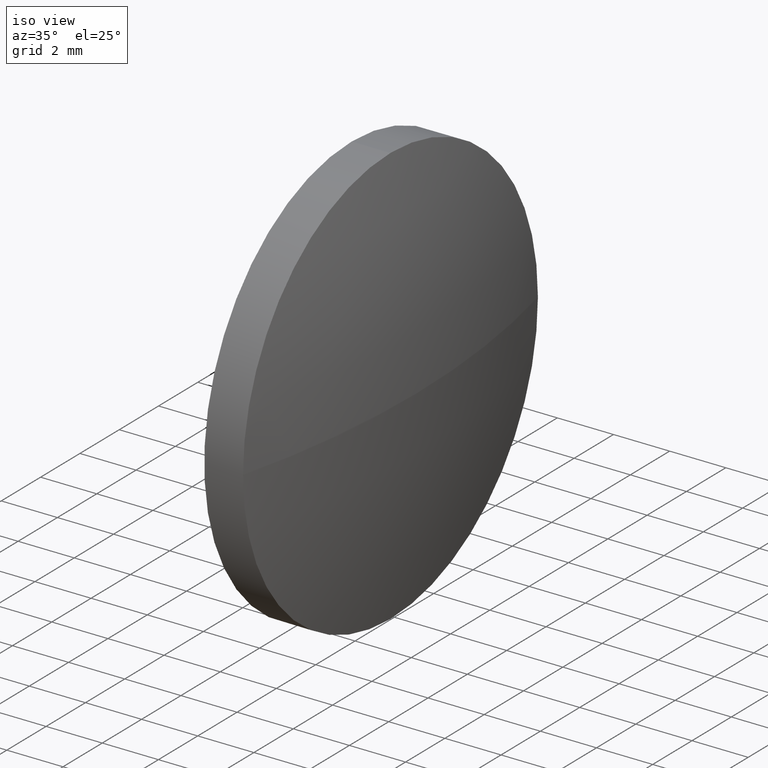
[diagram: clean part render]
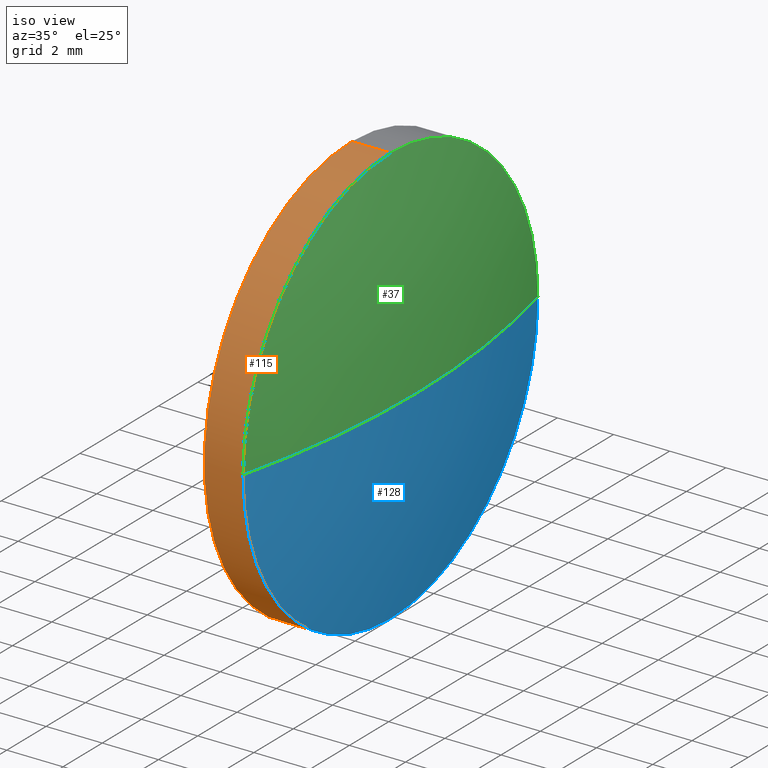
[diagram: same view with three faces highlighted in distinct colors, each labeled with its STEP entity id]
A machine part, iso view with three faces highlighted in distinct colors.
Their STEP definitions:

[orange] entity #115 — the highlighted cylindrical surface (partial cylindrical patch) has radius 7.5 mm, axis along (-1, -0, -0).
#1 = EDGE_LOOP ( 'NONE', ( #184, #165, #14, #60, #132 ) ) ;
#2 = CARTESIAN_POINT ( 'NONE',  ( 576.6614697419953500, 147.2765599219413800, 0.0000000000000000000 ) ) ;
#3 = CARTESIAN_POINT ( 'NONE',  ( 580.3681567995189400, 147.2765599219413800, 0.0000000000000000000 ) ) ;
#6 = LINE ( 'NONE', #182, #33 ) ;
#12 = AXIS2_PLACEMENT_3D ( 'NONE', #2, #20, #53 ) ;
#14 = ORIENTED_EDGE ( 'NONE', *, *, #97, .T. ) ;
#20 = DIRECTION ( 'NONE',  ( -1.000000000000000000, -0.0000000000000000000, -0.0000000000000000000 ) ) ;
#21 = CARTESIAN_POINT ( 'NONE',  ( 578.9881567995189500, 147.2765599219413800, -7.500000000000007100 ) ) ;
#22 = DIRECTION ( 'NONE',  ( 0.0000000000000000000, 0.0000000000000000000, 1.000000000000000000 ) ) ;
#23 = VERTEX_POINT ( 'NONE', #64 ) ;
#28 = CIRCLE ( 'NONE', #185, 7.500000000000007100 ) ;
#33 = VECTOR ( 'NONE', #69, 1000.000000000000000 ) ;
#36 = CARTESIAN_POINT ( 'NONE',  ( 580.3681567995189400, 147.2765599219413800, 7.500000000000007100 ) ) ;
#40 = CARTESIAN_POINT ( 'NONE',  ( 580.3681567995189400, 147.2765599219413800, -7.500000000000007100 ) ) ;
#43 = EDGE_CURVE ( 'NONE', #120, #144, #78, .T. ) ;
#44 = LINE ( 'NONE', #95, #126 ) ;
#50 = DIRECTION ( 'NONE',  ( 0.0000000000000000000, 0.0000000000000000000, 1.000000000000000000 ) ) ;
#53 = DIRECTION ( 'NONE',  ( 0.0000000000000000000, 0.0000000000000000000, 1.000000000000000000 ) ) ;
#54 = CARTESIAN_POINT ( 'NONE',  ( 578.9881567995189500, 147.2765599219413800, 0.0000000000000000000 ) ) ;
#60 = ORIENTED_EDGE ( 'NONE', *, *, #172, .T. ) ;
#64 = CARTESIAN_POINT ( 'NONE',  ( 578.9881567995189500, 147.2765599219413800, 7.500000000000007100 ) ) ;
#69 = DIRECTION ( 'NONE',  ( -1.000000000000000000, -0.0000000000000000000, -0.0000000000000000000 ) ) ;
#78 = CIRCLE ( 'NONE', #152, 7.500000000000007100 ) ;
#91 = DIRECTION ( 'NONE',  ( -1.000000000000000000, -0.0000000000000000000, -0.0000000000000000000 ) ) ;
#95 = CARTESIAN_POINT ( 'NONE',  ( 576.6614697419953500, 147.2765599219413800, 7.500000000000007100 ) ) ;
#97 = EDGE_CURVE ( 'NONE', #144, #183, #28, .T. ) ;
#110 = CARTESIAN_POINT ( 'NONE',  ( 580.3681567995189400, 139.7765599219414700, 0.0000000000000000000 ) ) ;
#111 = CYLINDRICAL_SURFACE ( 'NONE', #12, 7.500000000000007100 ) ;
#114 = DIRECTION ( 'NONE',  ( -1.000000000000000000, -0.0000000000000000000, -0.0000000000000000000 ) ) ;
#115 = ADVANCED_FACE ( 'NONE', ( #155 ), #111, .T. ) ;
#117 = VERTEX_POINT ( 'NONE', #21 ) ;
#120 = VERTEX_POINT ( 'NONE', #40 ) ;
#126 = VECTOR ( 'NONE', #129, 1000.000000000000000 ) ;
#129 = DIRECTION ( 'NONE',  ( -1.000000000000000000, -0.0000000000000000000, -0.0000000000000000000 ) ) ;
#132 = ORIENTED_EDGE ( 'NONE', *, *, #178, .F. ) ;
#136 = DIRECTION ( 'NONE',  ( 0.0000000000000000000, 0.0000000000000000000, 1.000000000000000000 ) ) ;
#142 = AXIS2_PLACEMENT_3D ( 'NONE', #54, #114, #136 ) ;
#144 = VERTEX_POINT ( 'NONE', #110 ) ;
#149 = CIRCLE ( 'NONE', #142, 7.500000000000007100 ) ;
#151 = EDGE_CURVE ( 'NONE', #120, #117, #6, .T. ) ;
#152 = AXIS2_PLACEMENT_3D ( 'NONE', #173, #91, #50 ) ;
#155 = FACE_OUTER_BOUND ( 'NONE', #1, .T. ) ;
#165 = ORIENTED_EDGE ( 'NONE', *, *, #43, .T. ) ;
#172 = EDGE_CURVE ( 'NONE', #183, #23, #44, .T. ) ;
#173 = CARTESIAN_POINT ( 'NONE',  ( 580.3681567995189400, 147.2765599219413800, 0.0000000000000000000 ) ) ;
#178 = EDGE_CURVE ( 'NONE', #117, #23, #149, .T. ) ;
#180 = DIRECTION ( 'NONE',  ( -1.000000000000000000, -0.0000000000000000000, -0.0000000000000000000 ) ) ;
#182 = CARTESIAN_POINT ( 'NONE',  ( 576.6614697419953500, 147.2765599219413800, -7.500000000000007100 ) ) ;
#183 = VERTEX_POINT ( 'NONE', #36 ) ;
#184 = ORIENTED_EDGE ( 'NONE', *, *, #151, .F. ) ;
#185 = AXIS2_PLACEMENT_3D ( 'NONE', #3, #180, #22 ) ;

[blue] entity #128 — the highlighted spherical surface has radius 31.0307 mm.
#8 = CIRCLE ( 'NONE', #68, 31.03065217391332100 ) ;
#9 = AXIS2_PLACEMENT_3D ( 'NONE', #72, #146, #147 ) ;
#15 = EDGE_CURVE ( 'NONE', #160, #120, #89, .T. ) ;
#19 = EDGE_LOOP ( 'NONE', ( #32, #93, #127, #66 ) ) ;
#24 = CIRCLE ( 'NONE', #9, 31.03065217391327800 ) ;
#32 = ORIENTED_EDGE ( 'NONE', *, *, #112, .F. ) ;
#34 = CARTESIAN_POINT ( 'NONE',  ( 581.2881567995189000, 147.2765599219415500, 0.0000000000000000000 ) ) ;
#39 = CARTESIAN_POINT ( 'NONE',  ( 580.3681567995189400, 154.7765599219414700, 9.184850993605047400E-016 ) ) ;
#40 = CARTESIAN_POINT ( 'NONE',  ( 580.3681567995189400, 147.2765599219413800, -7.500000000000007100 ) ) ;
#41 = DIRECTION ( 'NONE',  ( 0.0000000000000000000, 0.0000000000000000000, 1.000000000000000000 ) ) ;
#43 = EDGE_CURVE ( 'NONE', #120, #144, #78, .T. ) ;
#45 = AXIS2_PLACEMENT_3D ( 'NONE', #48, #67, #46 ) ;
#46 = DIRECTION ( 'NONE',  ( 0.0000000000000000000, 0.0000000000000000000, 1.000000000000000000 ) ) ;
#48 = CARTESIAN_POINT ( 'NONE',  ( 580.3681567995189400, 147.2765599219413800, 0.0000000000000000000 ) ) ;
#50 = DIRECTION ( 'NONE',  ( 0.0000000000000000000, 0.0000000000000000000, 1.000000000000000000 ) ) ;
#66 = ORIENTED_EDGE ( 'NONE', *, *, #15, .F. ) ;
#67 = DIRECTION ( 'NONE',  ( -1.000000000000000000, -0.0000000000000000000, -0.0000000000000000000 ) ) ;
#68 = AXIS2_PLACEMENT_3D ( 'NONE', #131, #148, #130 ) ;
#71 = CARTESIAN_POINT ( 'NONE',  ( 550.2575046256056300, 147.2765599219415500, 0.0000000000000000000 ) ) ;
#72 = CARTESIAN_POINT ( 'NONE',  ( 550.2575046256056300, 147.2765599219415500, 0.0000000000000000000 ) ) ;
#73 = EDGE_CURVE ( 'NONE', #113, #144, #8, .T. ) ;
#78 = CIRCLE ( 'NONE', #152, 7.500000000000007100 ) ;
#83 = DIRECTION ( 'NONE',  ( 0.0000000000000000000, -1.000000000000000000, 0.0000000000000000000 ) ) ;
#88 = AXIS2_PLACEMENT_3D ( 'NONE', #71, #41, #83 ) ;
#89 = CIRCLE ( 'NONE', #45, 7.500000000000007100 ) ;
#91 = DIRECTION ( 'NONE',  ( -1.000000000000000000, -0.0000000000000000000, -0.0000000000000000000 ) ) ;
#93 = ORIENTED_EDGE ( 'NONE', *, *, #73, .T. ) ;
#110 = CARTESIAN_POINT ( 'NONE',  ( 580.3681567995189400, 139.7765599219414700, 0.0000000000000000000 ) ) ;
#112 = EDGE_CURVE ( 'NONE', #113, #160, #24, .T. ) ;
#113 = VERTEX_POINT ( 'NONE', #34 ) ;
#120 = VERTEX_POINT ( 'NONE', #40 ) ;
#124 = SPHERICAL_SURFACE ( 'NONE', #88, 31.03065217391328200 ) ;
#127 = ORIENTED_EDGE ( 'NONE', *, *, #43, .F. ) ;
#128 = ADVANCED_FACE ( 'NONE', ( #174 ), #124, .T. ) ;
#130 = DIRECTION ( 'NONE',  ( -1.000000000000000000, 0.0000000000000000000, 0.0000000000000000000 ) ) ;
#131 = CARTESIAN_POINT ( 'NONE',  ( 550.2575046256056300, 147.2765599219415500, 0.0000000000000000000 ) ) ;
#144 = VERTEX_POINT ( 'NONE', #110 ) ;
#146 = DIRECTION ( 'NONE',  ( 0.0000000000000000000, -1.224646799147353200E-016, 1.000000000000000000 ) ) ;
#147 = DIRECTION ( 'NONE',  ( 0.0000000000000000000, -1.000000000000000000, -1.224646799147353500E-016 ) ) ;
#148 = DIRECTION ( 'NONE',  ( 0.0000000000000000000, 0.0000000000000000000, -1.000000000000000000 ) ) ;
#152 = AXIS2_PLACEMENT_3D ( 'NONE', #173, #91, #50 ) ;
#160 = VERTEX_POINT ( 'NONE', #39 ) ;
#173 = CARTESIAN_POINT ( 'NONE',  ( 580.3681567995189400, 147.2765599219413800, 0.0000000000000000000 ) ) ;
#174 = FACE_OUTER_BOUND ( 'NONE', #19, .T. ) ;

[green] entity #37 — the highlighted spherical surface has radius 31.0307 mm.
#3 = CARTESIAN_POINT ( 'NONE',  ( 580.3681567995189400, 147.2765599219413800, 0.0000000000000000000 ) ) ;
#8 = CIRCLE ( 'NONE', #68, 31.03065217391332100 ) ;
#9 = AXIS2_PLACEMENT_3D ( 'NONE', #72, #146, #147 ) ;
#16 = DIRECTION ( 'NONE',  ( -1.000000000000000000, -0.0000000000000000000, -0.0000000000000000000 ) ) ;
#22 = DIRECTION ( 'NONE',  ( 0.0000000000000000000, 0.0000000000000000000, 1.000000000000000000 ) ) ;
#24 = CIRCLE ( 'NONE', #9, 31.03065217391327800 ) ;
#26 = EDGE_CURVE ( 'NONE', #183, #160, #75, .T. ) ;
#28 = CIRCLE ( 'NONE', #185, 7.500000000000007100 ) ;
#34 = CARTESIAN_POINT ( 'NONE',  ( 581.2881567995189000, 147.2765599219415500, 0.0000000000000000000 ) ) ;
#36 = CARTESIAN_POINT ( 'NONE',  ( 580.3681567995189400, 147.2765599219413800, 7.500000000000007100 ) ) ;
#37 = ADVANCED_FACE ( 'NONE', ( #51 ), #65, .T. ) ;
#39 = CARTESIAN_POINT ( 'NONE',  ( 580.3681567995189400, 154.7765599219414700, 9.184850993605047400E-016 ) ) ;
#49 = ORIENTED_EDGE ( 'NONE', *, *, #112, .T. ) ;
#51 = FACE_OUTER_BOUND ( 'NONE', #96, .T. ) ;
#65 = SPHERICAL_SURFACE ( 'NONE', #164, 31.03065217391328200 ) ;
#68 = AXIS2_PLACEMENT_3D ( 'NONE', #131, #148, #130 ) ;
#72 = CARTESIAN_POINT ( 'NONE',  ( 550.2575046256056300, 147.2765599219415500, 0.0000000000000000000 ) ) ;
#73 = EDGE_CURVE ( 'NONE', #113, #144, #8, .T. ) ;
#75 = CIRCLE ( 'NONE', #108, 7.500000000000007100 ) ;
#80 = DIRECTION ( 'NONE',  ( 0.0000000000000000000, 0.0000000000000000000, 1.000000000000000000 ) ) ;
#81 = DIRECTION ( 'NONE',  ( 0.0000000000000000000, 0.0000000000000000000, 1.000000000000000000 ) ) ;
#90 = ORIENTED_EDGE ( 'NONE', *, *, #26, .F. ) ;
#96 = EDGE_LOOP ( 'NONE', ( #139, #49, #90, #133 ) ) ;
#97 = EDGE_CURVE ( 'NONE', #144, #183, #28, .T. ) ;
#103 = CARTESIAN_POINT ( 'NONE',  ( 580.3681567995189400, 147.2765599219413800, 0.0000000000000000000 ) ) ;
#108 = AXIS2_PLACEMENT_3D ( 'NONE', #103, #16, #80 ) ;
#110 = CARTESIAN_POINT ( 'NONE',  ( 580.3681567995189400, 139.7765599219414700, 0.0000000000000000000 ) ) ;
#112 = EDGE_CURVE ( 'NONE', #113, #160, #24, .T. ) ;
#113 = VERTEX_POINT ( 'NONE', #34 ) ;
#130 = DIRECTION ( 'NONE',  ( -1.000000000000000000, 0.0000000000000000000, 0.0000000000000000000 ) ) ;
#131 = CARTESIAN_POINT ( 'NONE',  ( 550.2575046256056300, 147.2765599219415500, 0.0000000000000000000 ) ) ;
#133 = ORIENTED_EDGE ( 'NONE', *, *, #97, .F. ) ;
#139 = ORIENTED_EDGE ( 'NONE', *, *, #73, .F. ) ;
#144 = VERTEX_POINT ( 'NONE', #110 ) ;
#146 = DIRECTION ( 'NONE',  ( 0.0000000000000000000, -1.224646799147353200E-016, 1.000000000000000000 ) ) ;
#147 = DIRECTION ( 'NONE',  ( 0.0000000000000000000, -1.000000000000000000, -1.224646799147353500E-016 ) ) ;
#148 = DIRECTION ( 'NONE',  ( 0.0000000000000000000, 0.0000000000000000000, -1.000000000000000000 ) ) ;
#157 = CARTESIAN_POINT ( 'NONE',  ( 550.2575046256056300, 147.2765599219415500, 0.0000000000000000000 ) ) ;
#160 = VERTEX_POINT ( 'NONE', #39 ) ;
#164 = AXIS2_PLACEMENT_3D ( 'NONE', #157, #81, #176 ) ;
#176 = DIRECTION ( 'NONE',  ( 0.0000000000000000000, -1.000000000000000000, 0.0000000000000000000 ) ) ;
#180 = DIRECTION ( 'NONE',  ( -1.000000000000000000, -0.0000000000000000000, -0.0000000000000000000 ) ) ;
#183 = VERTEX_POINT ( 'NONE', #36 ) ;
#185 = AXIS2_PLACEMENT_3D ( 'NONE', #3, #180, #22 ) ;